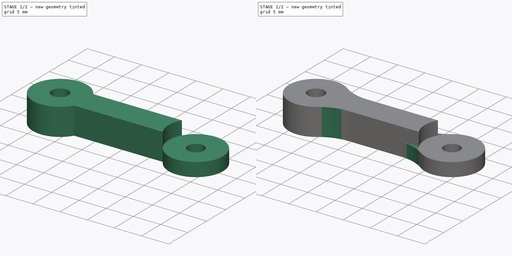
[diagram: build sequence overview — one tinted view per stage of 2, left to right]
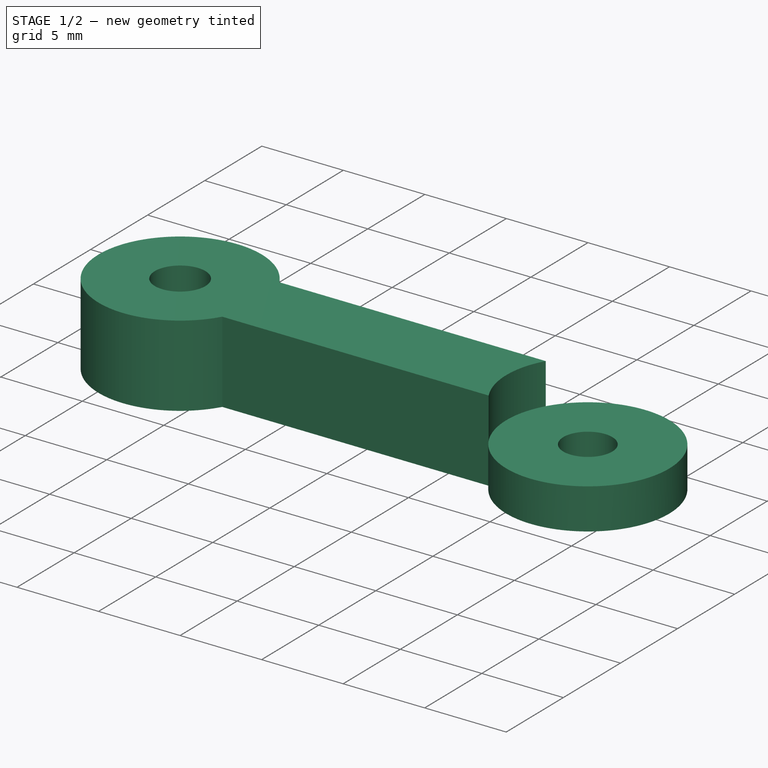
[diagram: stage 1 of 2 — iso view after this stage's code; geometry added in this stage tinted green]
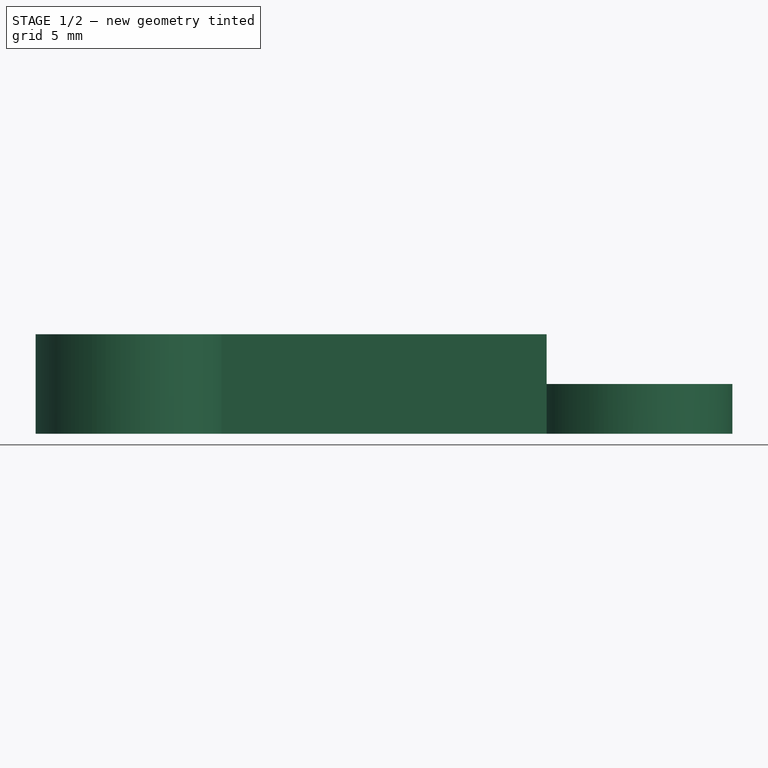
[diagram: stage 1 of 2 — front view after this stage's code; geometry added in this stage tinted green]
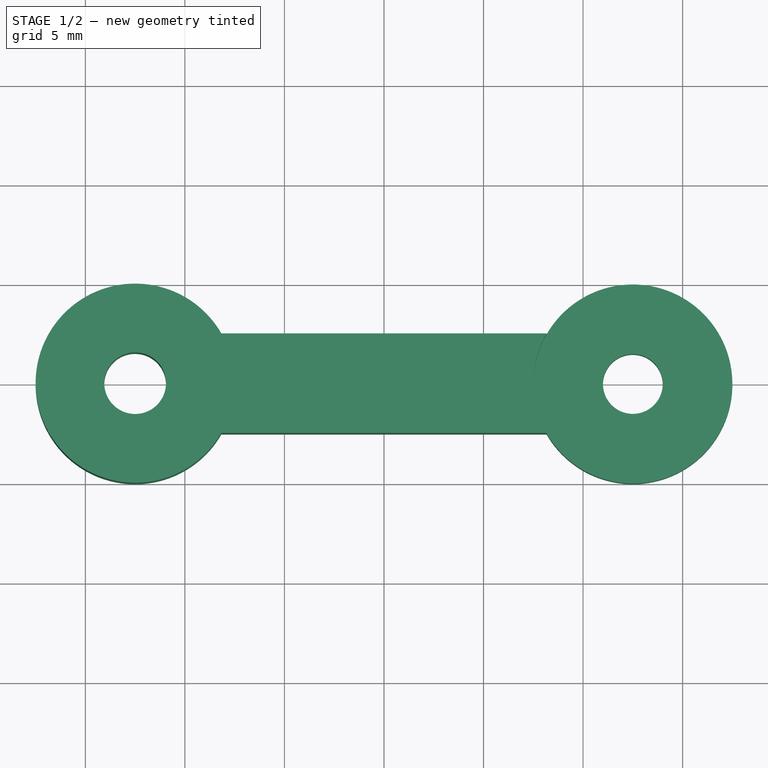
[diagram: stage 1 of 2 — top view after this stage's code; geometry added in this stage tinted green]
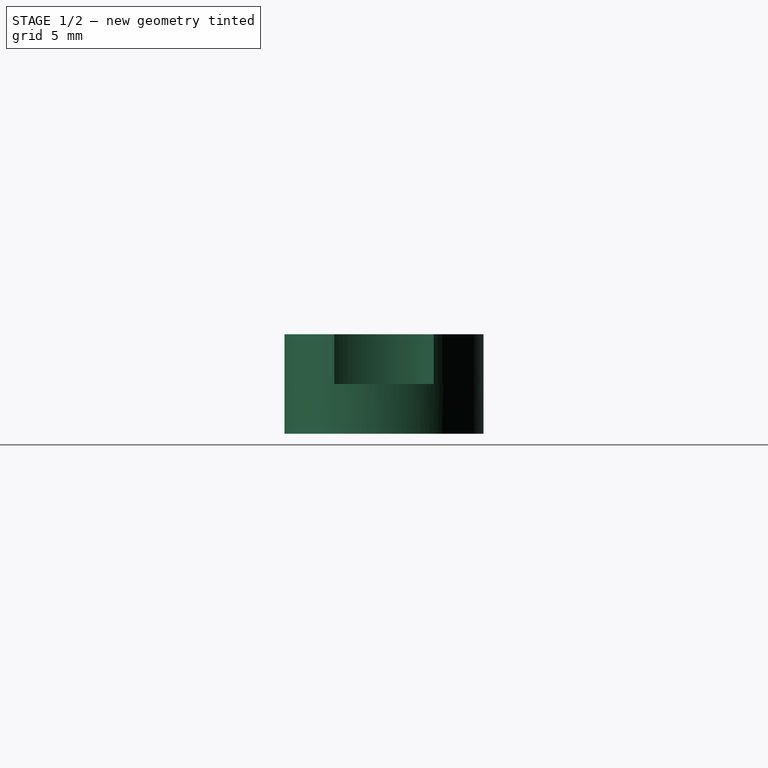
[diagram: stage 1 of 2 — right view after this stage's code; geometry added in this stage tinted green]
FCSTD DOCUMENT  (FreeCAD 0.14R3702 (Git))
Label: plaquita-pinza
License: CC-BY 3.0
LicenseURL: http://creativecommons.org/licenses/by/3.0/
objects: Sketcher::SketchObject×2, Part::Extrusion×1, PartDesign::Pocket×1, PartDesign::Fillet×1
note: 6 computed .brp shape members not serialized (recipe doc carries the construction recipe); baked Part::Feature solids carry a one-line shape summary decoded from their .brp

FEATURE [Sketcher::SketchObject] Sketch  label="sk-main"
  sketch-geometry (6):
    g0: ArcOfCircle CenterX=-12.5 CenterY=0 CenterZ=0 NormalX=0 NormalY=0 NormalZ=1 Radius=5 StartAngle=0.523599 EndAngle=5.75959
    g1: Circle CenterX=-12.5 CenterY=0 CenterZ=0 NormalX=0 NormalY=0 NormalZ=1 Radius=1.55
    g2: LineSegment StartX=-8.16987 StartY=2.5 StartZ=0 EndX=8.16987 EndY=2.5 EndZ=0
    g3: LineSegment StartX=8.16987 StartY=-2.5 StartZ=0 EndX=-8.16987 EndY=-2.5 EndZ=0
    g4: ArcOfCircle CenterX=12.5 CenterY=0 CenterZ=0 NormalX=0 NormalY=0 NormalZ=1 Radius=5 StartAngle=3.66519 EndAngle=8.90118
    g5: Circle CenterX=12.5 CenterY=0 CenterZ=0 NormalX=0 NormalY=0 NormalZ=1 Radius=1.5
  constraints (16):
    c: Radius(g1) = 1.55
    c: Coincident(g0,g3)
    c: Horizontal(g2)
    c: Horizontal(g3)
    c: Radius(g0) = 5
    c: Coincident(g0,g2)
    c: Symmetric(g2,g0,g-2)
    c: Coincident(g0,g1)
    c: Coincident(g4,g5)
    c: Coincident(g2,g4)
    c: Coincident(g3,g4)
    c: Radius(g5) = 1.5
    c: DistanceX(g0,g4) = 25
    c: Symmetric(g4,g0,g-2)
    c: Symmetric(g3,g2,g-1)
    c: DistanceY(g2,g3) = -5
FEATURE [Part::Extrusion] Extrude  label="cuerpo"
  Base = -> Sketch
  Dir = (0,0,5)
  Solid = true
FEATURE [Sketcher::SketchObject] Sketch001  label="sk-hueco"
  ExternalGeometry = -> [Extrude]
  Placement = pos=(0,0,5) rot=(0,0,1;0rad)
  Support = -> Extrude [Face8]
  sketch-geometry (1):
    g0: Circle CenterX=12.5 CenterY=0 CenterZ=0 NormalX=0 NormalY=0 NormalZ=1 Radius=5
  constraints (2):
    c: Coincident(g0,g-3)
    c: Equal(g-3,g0)
FEATURE [PartDesign::Pocket] Pocket  label="pk-hueco"
  Length = 2.5
  Sketch = -> Sketch001
  Type = 0
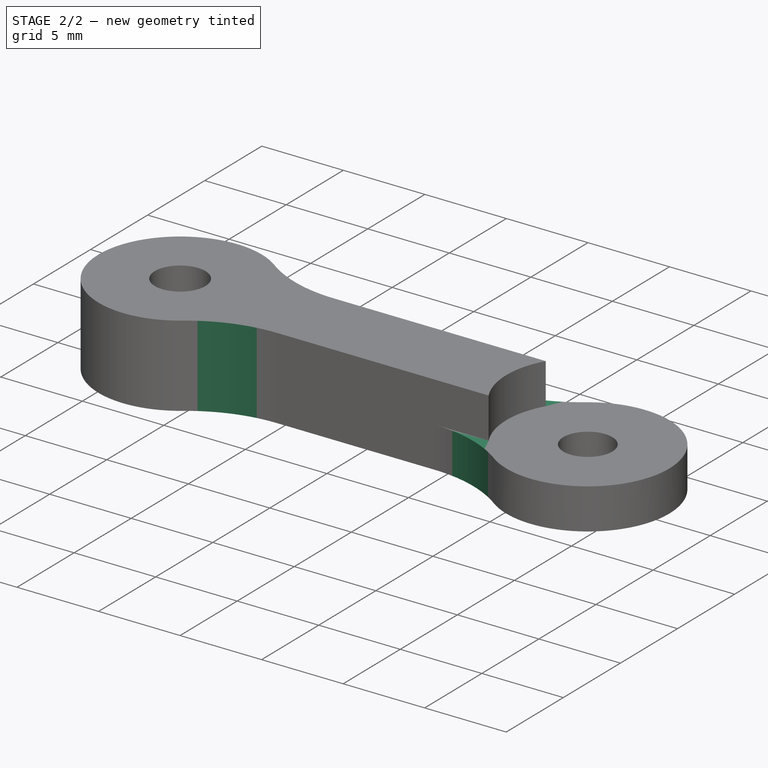
[diagram: stage 2 of 2 — iso view after this stage's code; geometry added in this stage tinted green]
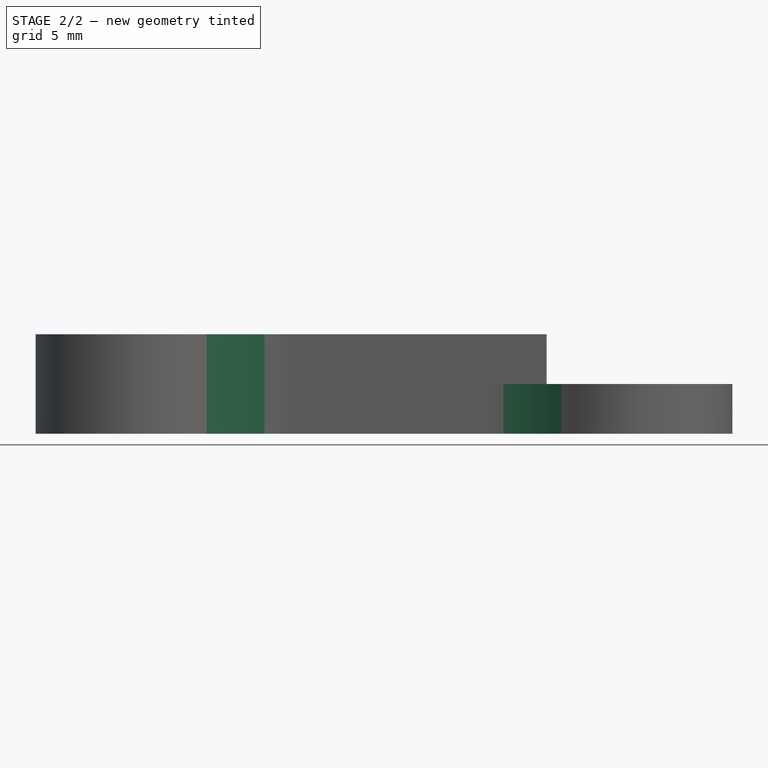
[diagram: stage 2 of 2 — front view after this stage's code; geometry added in this stage tinted green]
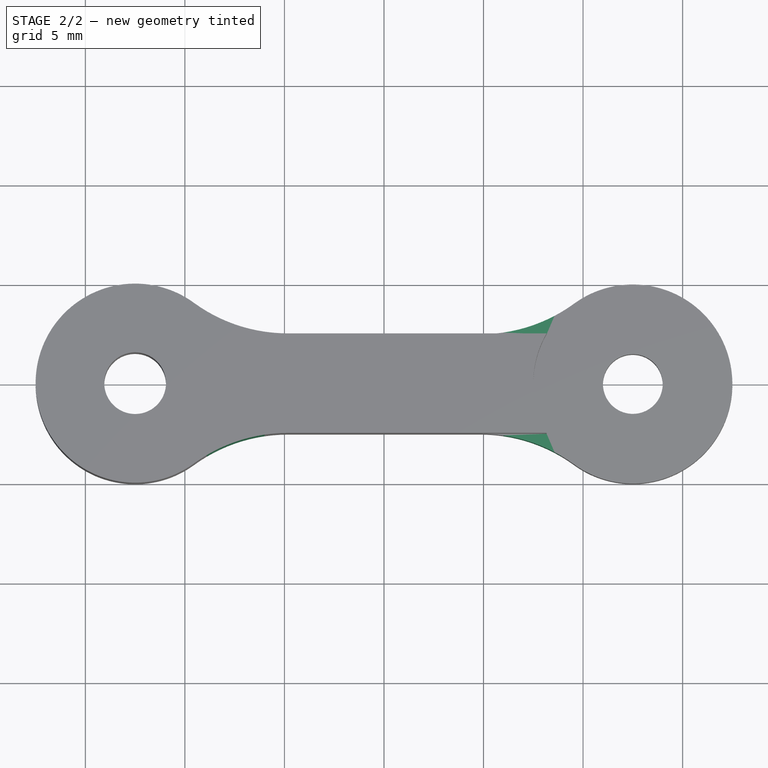
[diagram: stage 2 of 2 — top view after this stage's code; geometry added in this stage tinted green]
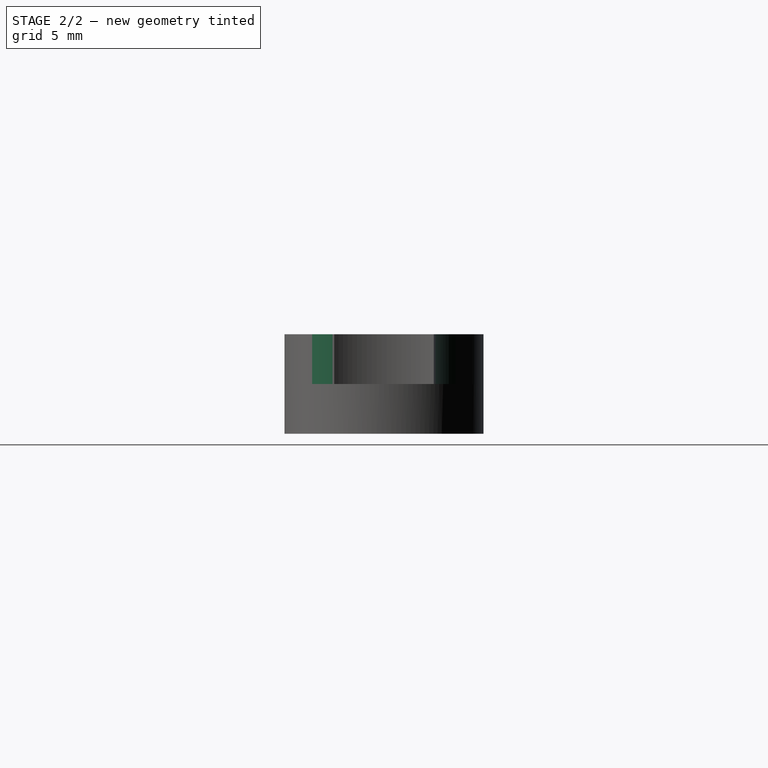
[diagram: stage 2 of 2 — right view after this stage's code; geometry added in this stage tinted green]
FEATURE [PartDesign::Fillet] Fillet  label="plaquita-pinza"
  Base = -> Pocket [Edge1,Edge2,Edge7,Edge9]
  Radius = 8
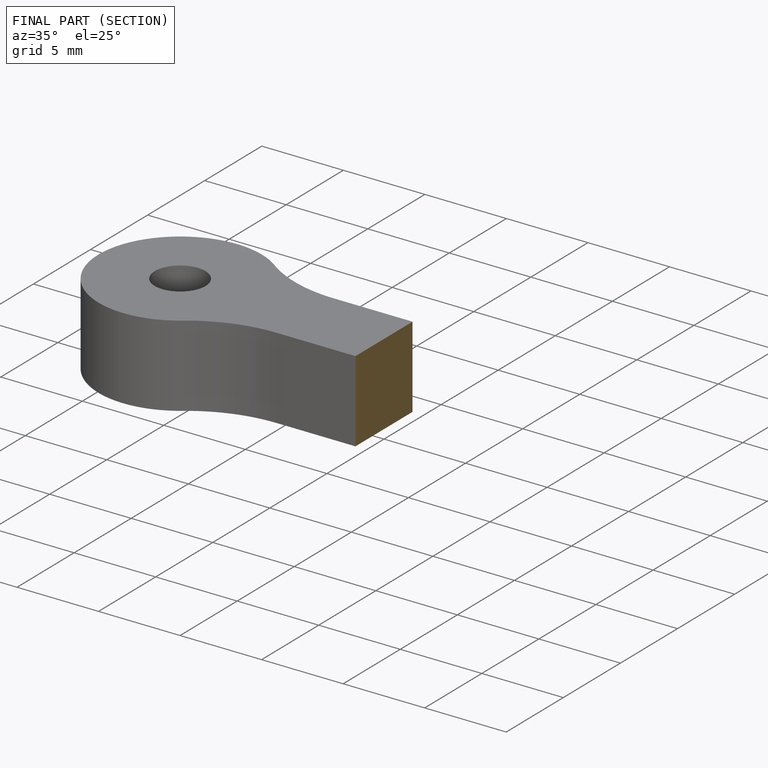
[diagram: finished part — half-section view (interior)]
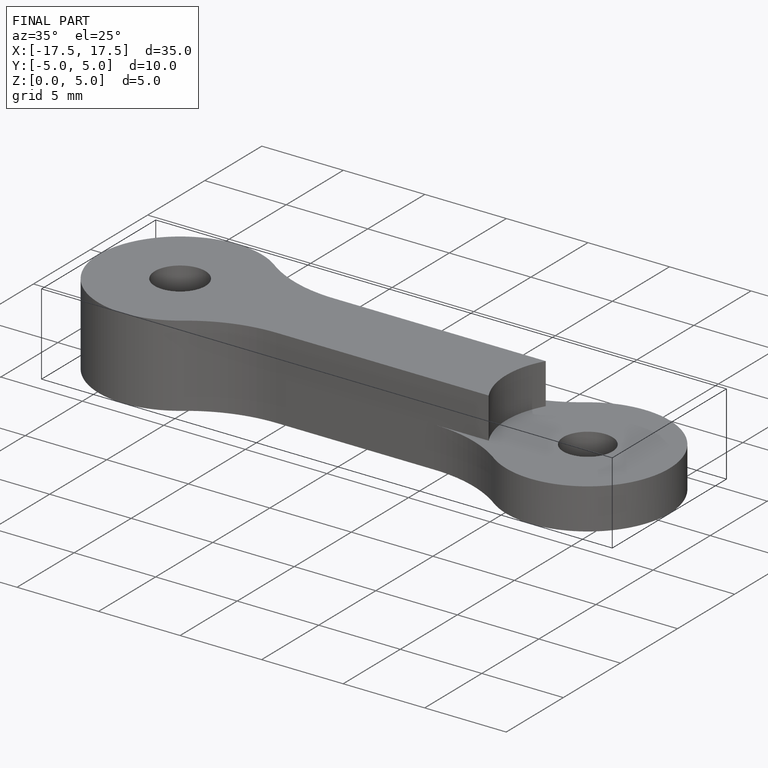
[diagram: finished part — iso view with bounding-box wireframe]
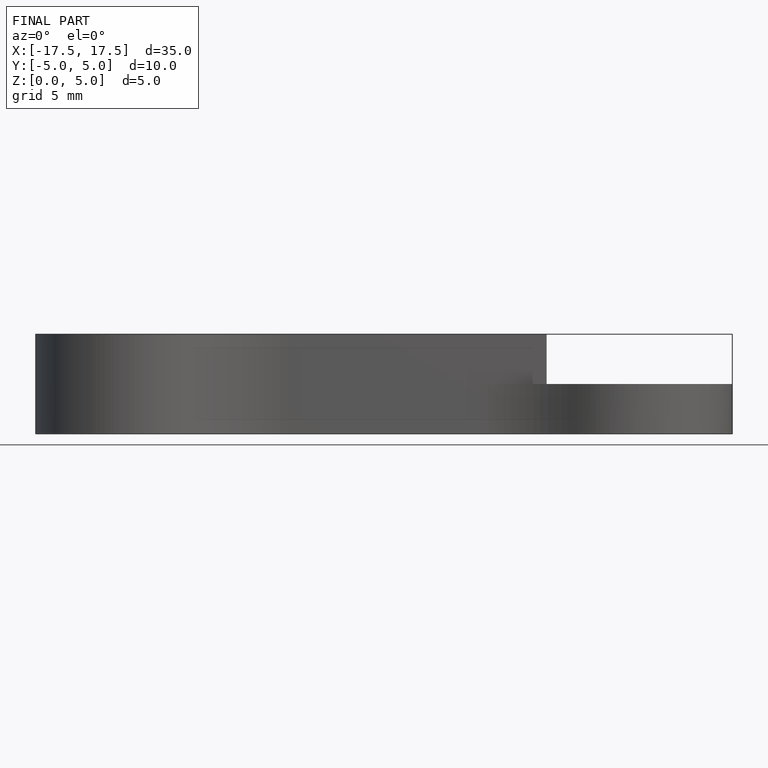
[diagram: finished part — front view with bounding-box wireframe]
